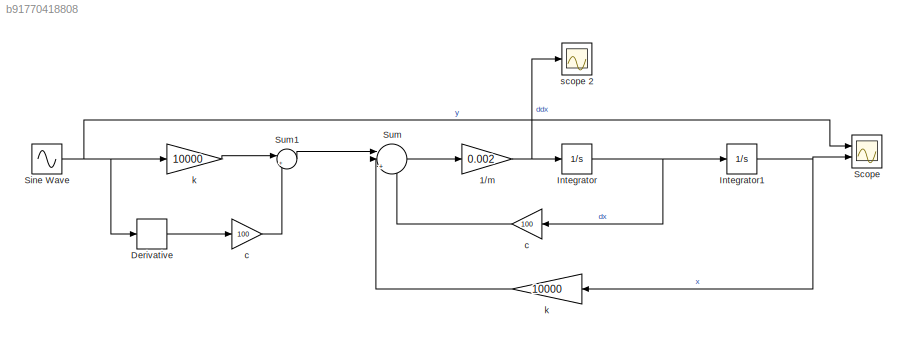
MODEL slx_b91770418808
KIND model
CONFIG AbsTol = auto
CONFIG EnableMultiTasking = off
CONFIG FixedStep = auto
CONFIG MaxStep = auto
CONFIG MinStep = auto
CONFIG RelTol = 1e-3
CONFIG SampleTimeConstraint = Unconstrained
CONFIG SolverName = VariableStepAuto
CONFIG StartTime = 0.0
CONFIG StopTime = 0.14
BLOCK [Gain]  c
  Gain = 100
  NameLocation = top
BLOCK [Gain]  k
  Gain = 10000
  NameLocation = top
BLOCK [Gain] 1//m
  Gain = 0.002
BLOCK [Derivative] Derivative
BLOCK [Integrator] Integrator
  Ports = [1, 1]
BLOCK [Integrator] Integrator1
  Ports = [1, 1]
BLOCK [Scope] Scope
  Floating = off
  NumInputPorts = 2
  Ports = [2]
  ScopeSpecificationString = Simulink.scopes.TimeScopeBlockCfg('CurrentConfiguration', extmgr.ConfigurationSet(extmgr.Configuration('Core','General UI',true),extmgr.Configuration('Core','Source UI',true),extmgr.Configuration('Sources','WiredSimulink',true),extmgr.Configuration('Visuals','Time Domain',true,'SerializedDisplays',{struct('MinYLimReal','-0.51187','MaxYLimReal','0.05687','YLabelReal','displacement(m)','MinYLimMag',...<+2139ch>
BLOCK [Sin] Sine Wave
  Amplitude = -0.375
  Bias = -0.08
  Frequency = 22.22
  Ports = [0, 1]
  SampleTime = 0
BLOCK [Sum] Sum
  Inputs = ||+--
  Ports = [3, 1]
BLOCK [Sum] Sum1
  Inputs = |++
  Ports = [2, 1]
BLOCK [Gain] c
  Gain = 100
BLOCK [Gain] k
  Gain = 10000
BLOCK [Scope] scope 2
  Floating = off
  NumInputPorts = 1
  Ports = [1]
  ScopeSpecificationString = Simulink.scopes.TimeScopeBlockCfg('CurrentConfiguration', extmgr.ConfigurationSet(extmgr.Configuration('Core','General UI',true),extmgr.Configuration('Core','Source UI',true),extmgr.Configuration('Sources','WiredSimulink',true,'DataLoggingVariableName','ScopeData1'),extmgr.Configuration('Visuals','Time Domain',true,'SerializedDisplays',{struct('MinYLimReal','-10.32715','MaxYLimReal','2.62925','YLa...<+1894ch>
LINE  c:1 -> Sum:3
LINE  k:1 -> Sum:2
NET 1//m:1 -> Integrator:1, scope 2:1
LINE Derivative:1 -> c:1
NET Integrator1:1 ->  k:1, Scope:2
NET Integrator:1 ->  c:1, Integrator1:1
NET Sine Wave:1 -> Derivative:1, Scope:1, k:1
LINE Sum1:1 -> Sum:1
LINE Sum:1 -> 1//m:1
LINE c:1 -> Sum1:2
LINE k:1 -> Sum1:1
note: NET lines group one-source signal fan-out (src -> all destinations, sorted); 1:1 wires keep LINE
